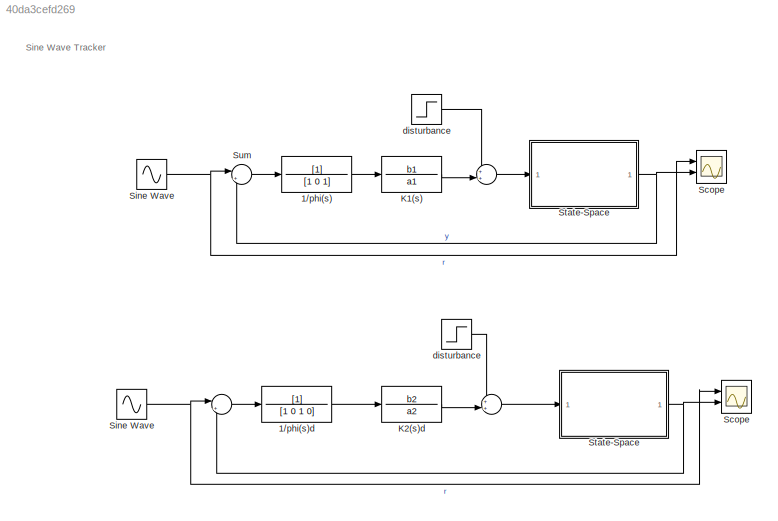
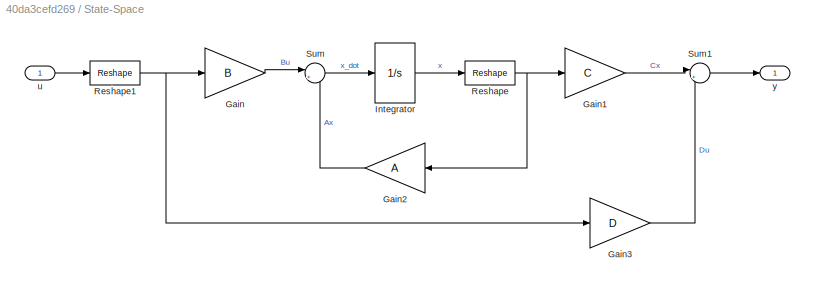
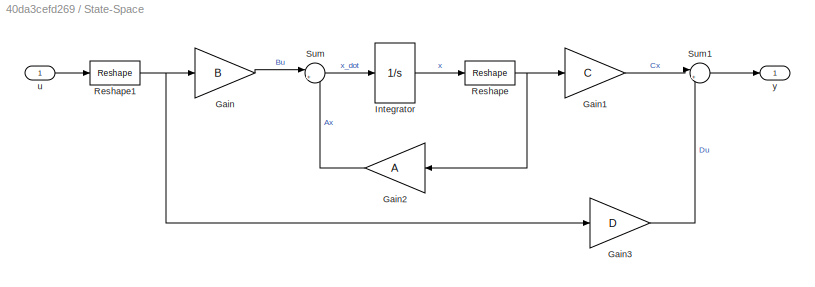
MODEL slx_40da3cefd269
KIND model
CONFIG AbsTol = auto
CONFIG EnableMultiTasking = off
CONFIG FixedStep = auto
CONFIG MaxStep = auto
CONFIG MinStep = auto
CONFIG RelTol = 1e-3
CONFIG SampleTimeConstraint = Unconstrained
CONFIG Solver = VariableStepAuto
CONFIG SolverName = VariableStepAuto
CONFIG StartTime = 0.0
CONFIG StopTime = 200
BLOCK [Sum]  
  Inputs = |+-
  Ports = [2, 1]
BLOCK [Sum]   
  Inputs = ++|
  Ports = [2, 1]
BLOCK [Sum]                        
  Inputs = ++|
  Ports = [2, 1]
BLOCK [TransferFcn] 1//phi(s)
  Denominator = [1 0 1]
BLOCK [TransferFcn] 1//phi(s)d
  Denominator = [1 0 1 0]
BLOCK [TransferFcn] K1(s)
  Denominator = a1
  Numerator = b1
BLOCK [TransferFcn] K2(s)d
  Denominator = a2
  Numerator = b2
BLOCK [Scope] Scope
  Floating = off
  NumInputPorts = 2
  Ports = [2]
  ScopeSpecificationString = Simulink.scopes.TimeScopeBlockCfg('CurrentConfiguration', extmgr.ConfigurationSet(extmgr.Configuration('Core','General UI',true,'FigureColor',[1 1 1]),extmgr.Configuration('Core','Source UI',true),extmgr.Configuration('Sources','WiredSimulink',true,'DataLoggingVariableName','ScopeData4'),extmgr.Configuration('Visuals','Time Domain',true,'SerializedDisplays',{struct('MinYLimReal','-2.14789','MaxYLi...<+1784ch>
BLOCK [Scope] Scope   
  Floating = off
  NumInputPorts = 2
  Ports = [2]
  ScopeSpecificationString = Simulink.scopes.TimeScopeBlockCfg('CurrentConfiguration', extmgr.ConfigurationSet(extmgr.Configuration('Core','General UI',true,'FigureColor',[1 1 1]),extmgr.Configuration('Core','Source UI',true),extmgr.Configuration('Sources','WiredSimulink',true,'DataLoggingVariableName','ScopeData6'),extmgr.Configuration('Visuals','Time Domain',true,'SerializedDisplays',{struct('MinYLimReal','-1.31228','MaxYLi...<+1790ch>
BLOCK [Sin] Sine Wave
  Ports = [0, 1]
  SampleTime = 0
BLOCK [Sin] Sine Wave 
  Ports = [0, 1]
  SampleTime = 0
BLOCK [SubSystem] State-Space
  Ports = [1, 1]
  RequestExecContextInheritance = off
BLOCK [SubSystem] State-Space 
  Ports = [1, 1]
  RequestExecContextInheritance = off
BLOCK [Gain] State-Space /Gain
  Gain = B
  Multiplication = Matrix(K*u)
BLOCK [Gain] State-Space /Gain1
  Gain = C
  Multiplication = Matrix(K*u)
BLOCK [Gain] State-Space /Gain2
  Gain = A
  Multiplication = Matrix(K*u)
  NameLocation = top
BLOCK [Gain] State-Space /Gain3
  Gain = D
  Multiplication = Matrix(K*u)
BLOCK [Integrator] State-Space /Integrator
  InitialCondition = [0; 0; 0]
  Ports = [1, 1]
BLOCK [Reshape] State-Space /Reshape
  OutputDimensionality = Column vector (2-D)
  OutputDimensions = [12,1]
  Ports = [1, 1]
BLOCK [Reshape] State-Space /Reshape1
  OutputDimensionality = Column vector (2-D)
  Ports = [1, 1]
BLOCK [Sum] State-Space /Sum
  Inputs = |++
  Ports = [2, 1]
BLOCK [Sum] State-Space /Sum1
  Inputs = |++
  Ports = [2, 1]
BLOCK [Inport] State-Space /u
BLOCK [Outport] State-Space /y
BLOCK [Gain] State-Space/Gain
  Gain = B
  Multiplication = Matrix(K*u)
BLOCK [Gain] State-Space/Gain1
  Gain = C
  Multiplication = Matrix(K*u)
BLOCK [Gain] State-Space/Gain2
  Gain = A
  Multiplication = Matrix(K*u)
  NameLocation = top
BLOCK [Gain] State-Space/Gain3
  Gain = D
  Multiplication = Matrix(K*u)
BLOCK [Integrator] State-Space/Integrator
  InitialCondition = [0; 0; 0]
  Ports = [1, 1]
BLOCK [Reshape] State-Space/Reshape
  OutputDimensionality = Column vector (2-D)
  OutputDimensions = [12,1]
  Ports = [1, 1]
BLOCK [Reshape] State-Space/Reshape1
  OutputDimensionality = Column vector (2-D)
  Ports = [1, 1]
BLOCK [Sum] State-Space/Sum
  Inputs = |++
  Ports = [2, 1]
BLOCK [Sum] State-Space/Sum1
  Inputs = |++
  Ports = [2, 1]
BLOCK [Inport] State-Space/u
BLOCK [Outport] State-Space/y
BLOCK [Sum] Sum
  Inputs = |+-
  Ports = [2, 1]
BLOCK [Step] disturbance
  After = 20
  SampleTime = 0
  Time = 30
BLOCK [Step] disturbance 
  After = 2
  SampleTime = 0
  Time = 30
ANNOTATION (root): Sine Wave Tracker
LINE                        :1 -> State-Space :1
LINE   :1 -> State-Space:1
LINE  :1 -> 1//phi(s)d:1
LINE 1//phi(s):1 -> K1(s):1
LINE 1//phi(s)d:1 -> K2(s)d:1
LINE K1(s):1 ->                        :2
LINE K2(s)d:1 ->   :2
NET Sine Wave :1 ->  :1, Scope   :1
NET Sine Wave:1 -> Scope:1, Sum:1
LINE State-Space /Gain1:1 -> State-Space /Sum1:1
LINE State-Space /Gain2:1 -> State-Space /Sum:2
LINE State-Space /Gain3:1 -> State-Space /Sum1:2
LINE State-Space /Gain:1 -> State-Space /Sum:1
LINE State-Space /Integrator:1 -> State-Space /Reshape:1
NET State-Space /Reshape1:1 -> State-Space /Gain3:1, State-Space /Gain:1
NET State-Space /Reshape:1 -> State-Space /Gain1:1, State-Space /Gain2:1
LINE State-Space /Sum1:1 -> State-Space /y:1
LINE State-Space /Sum:1 -> State-Space /Integrator:1
LINE State-Space /u:1 -> State-Space /Reshape1:1
NET State-Space :1 -> Scope:2, Sum:2
LINE State-Space/Gain1:1 -> State-Space/Sum1:1
LINE State-Space/Gain2:1 -> State-Space/Sum:2
LINE State-Space/Gain3:1 -> State-Space/Sum1:2
LINE State-Space/Gain:1 -> State-Space/Sum:1
LINE State-Space/Integrator:1 -> State-Space/Reshape:1
NET State-Space/Reshape1:1 -> State-Space/Gain3:1, State-Space/Gain:1
NET State-Space/Reshape:1 -> State-Space/Gain1:1, State-Space/Gain2:1
LINE State-Space/Sum1:1 -> State-Space/y:1
LINE State-Space/Sum:1 -> State-Space/Integrator:1
LINE State-Space/u:1 -> State-Space/Reshape1:1
NET State-Space:1 ->  :2, Scope   :2
LINE Sum:1 -> 1//phi(s):1
LINE disturbance :1 ->                        :1
LINE disturbance:1 ->   :1
note: NET lines group one-source signal fan-out (src -> all destinations, sorted); 1:1 wires keep LINE
